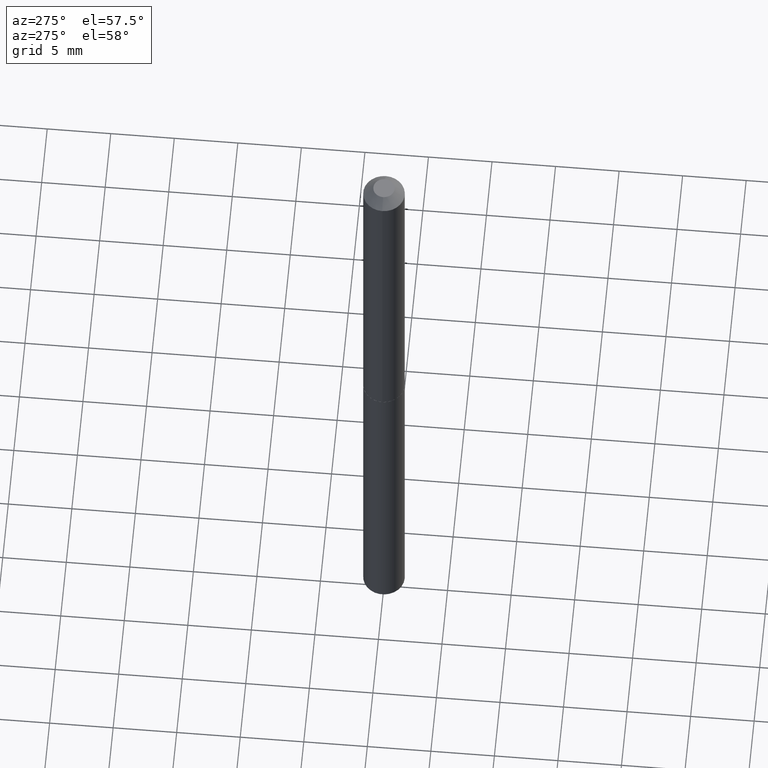
[diagram: clean part render]
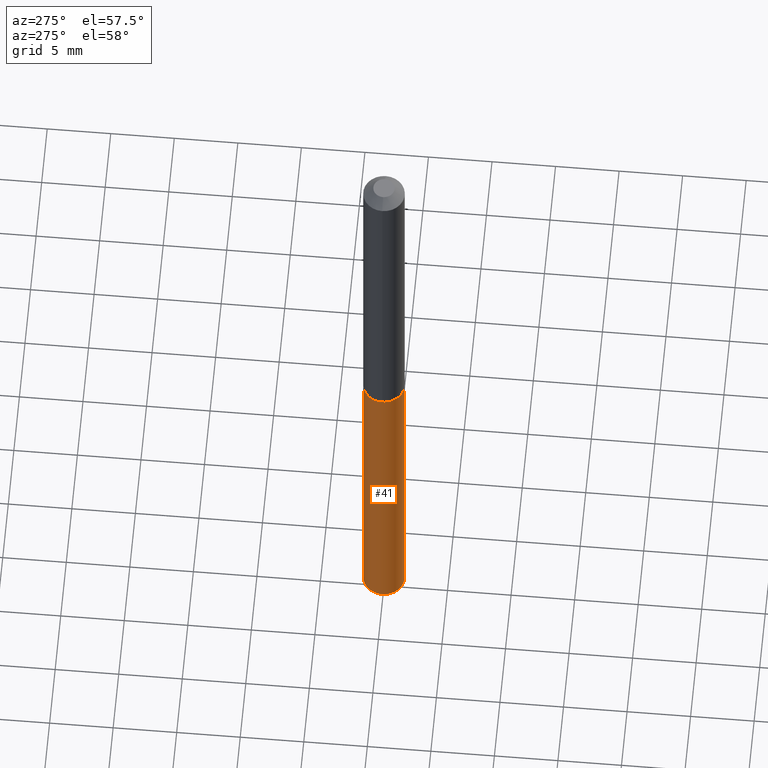
[diagram: same view with one face highlighted and labeled with its STEP entity id]
A machine part, auxiliary view. The second image highlights one B-rep face of the part: STEP entity #41.
In plain terms, the highlighted cylindrical surface (edge-blend (fillet) strip) has radius 1.632 mm, axis along (-0, 0, 1).
Its self-contained STEP definition (entity closure, byte-faithful):
#4 = ORIENTED_EDGE ( 'NONE', *, *, #238, .F. ) ;
#7 = VERTEX_POINT ( 'NONE', #208 ) ;
#10 = CARTESIAN_POINT ( 'NONE',  ( 5.461164970613019444E-29, -7.794348814090572304E-15, -2.232784264386300066 ) ) ;
#13 = DIRECTION ( 'NONE',  ( -6.982962677686265922E-15, -1.000000000000000000, 4.251903492084456561E-15 ) ) ;
#16 = AXIS2_PLACEMENT_3D ( 'NONE', #10, #25, #13 ) ;
#25 = DIRECTION ( 'NONE',  ( -2.446338782464142436E-29, 3.490235483295634574E-15, 1.000000000000000000 ) ) ;
#41 = ADVANCED_FACE ( 'NONE', ( #129 ), #369, .T. ) ;
#57 = CARTESIAN_POINT ( 'NONE',  ( 2.759711547779926600E-29, -3.940136690884488960E-15, -1.128499999999999837 ) ) ;
#72 = LINE ( 'NONE', #220, #159 ) ;
#73 = AXIS2_PLACEMENT_3D ( 'NONE', #57, #376, #323 ) ;
#78 = CARTESIAN_POINT ( 'NONE',  ( -4.486553520413150773E-16, -0.06425000000000394285, -1.128499999999999615 ) ) ;
#83 = CARTESIAN_POINT ( 'NONE',  ( 4.565237077259191077E-16, 0.06424999999999606026, -1.128500000000000059 ) ) ;
#95 = VERTEX_POINT ( 'NONE', #226 ) ;
#102 = EDGE_CURVE ( 'NONE', #386, #201, #72, .T. ) ;
#116 = EDGE_CURVE ( 'NONE', #386, #7, #182, .T. ) ;
#119 = ORIENTED_EDGE ( 'NONE', *, *, #116, .T. ) ;
#129 = FACE_OUTER_BOUND ( 'NONE', #180, .T. ) ;
#155 = DIRECTION ( 'NONE',  ( -2.446338782464142436E-29, 3.490235483295634574E-15, 1.000000000000000000 ) ) ;
#159 = VECTOR ( 'NONE', #155, 39.37007874015748143 ) ;
#177 = CIRCLE ( 'NONE', #73, 0.06425000000000000155 ) ;
#180 = EDGE_LOOP ( 'NONE', ( #309, #119, #295, #4 ) ) ;
#182 = CIRCLE ( 'NONE', #16, 0.06425000000000000155 ) ;
#186 = DIRECTION ( 'NONE',  ( -2.446338782464142436E-29, 3.490235483295634574E-15, 1.000000000000000000 ) ) ;
#192 = DIRECTION ( 'NONE',  ( -2.446338782464142436E-29, 3.490235483295634574E-15, 1.000000000000000000 ) ) ;
#197 = VECTOR ( 'NONE', #192, 39.37007874015748143 ) ;
#201 = VERTEX_POINT ( 'NONE', #83 ) ;
#208 = CARTESIAN_POINT ( 'NONE',  ( -4.486553520412880588E-16, -0.06425000000000780087, -2.232784264386300066 ) ) ;
#220 = CARTESIAN_POINT ( 'NONE',  ( 4.565237077258918920E-16, 0.06424999999999606026, -1.128500000000000059 ) ) ;
#222 = DIRECTION ( 'NONE',  ( -6.982962677686265922E-15, -1.000000000000000000, 4.251903492084456561E-15 ) ) ;
#226 = CARTESIAN_POINT ( 'NONE',  ( -4.486553520413150773E-16, -0.06425000000000394285, -1.128499999999999615 ) ) ;
#238 = EDGE_CURVE ( 'NONE', #201, #95, #177, .T. ) ;
#295 = ORIENTED_EDGE ( 'NONE', *, *, #327, .T. ) ;
#300 = CARTESIAN_POINT ( 'NONE',  ( 4.565237077259190091E-16, 0.06424999999999221612, -2.232784264386300510 ) ) ;
#309 = ORIENTED_EDGE ( 'NONE', *, *, #102, .F. ) ;
#323 = DIRECTION ( 'NONE',  ( -6.982962677686265922E-15, -1.000000000000000000, 4.251903492084456561E-15 ) ) ;
#324 = AXIS2_PLACEMENT_3D ( 'NONE', #340, #186, #222 ) ;
#327 = EDGE_CURVE ( 'NONE', #7, #95, #377, .T. ) ;
#340 = CARTESIAN_POINT ( 'NONE',  ( 2.759711547779926600E-29, -3.940136690884488960E-15, -1.128499999999999837 ) ) ;
#369 = CYLINDRICAL_SURFACE ( 'NONE', #324, 0.06425000000000000155 ) ;
#376 = DIRECTION ( 'NONE',  ( -2.446338782464142436E-29, 3.490235483295634574E-15, 1.000000000000000000 ) ) ;
#377 = LINE ( 'NONE', #78, #197 ) ;
#386 = VERTEX_POINT ( 'NONE', #300 ) ;